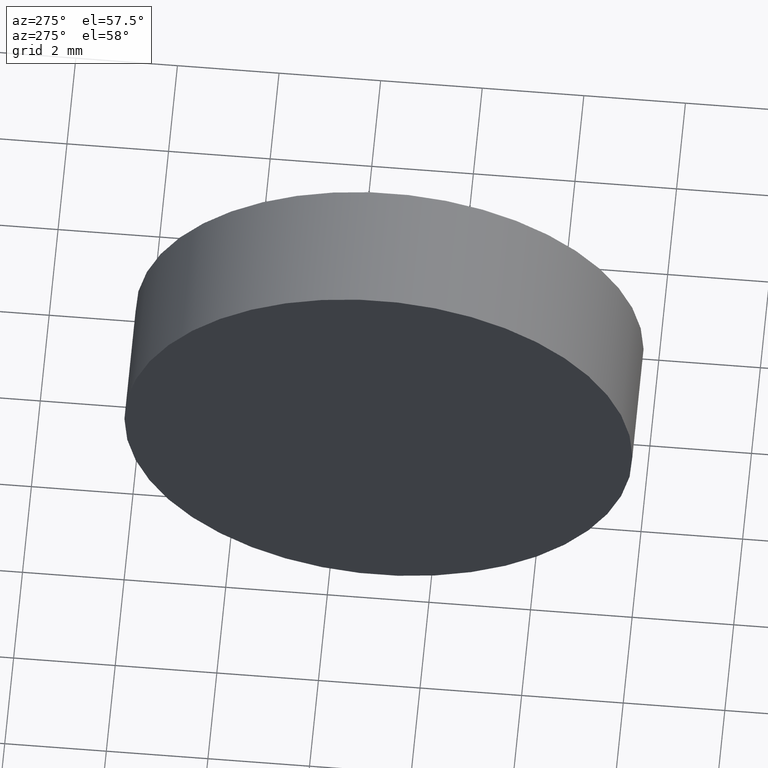
[diagram: clean part render]
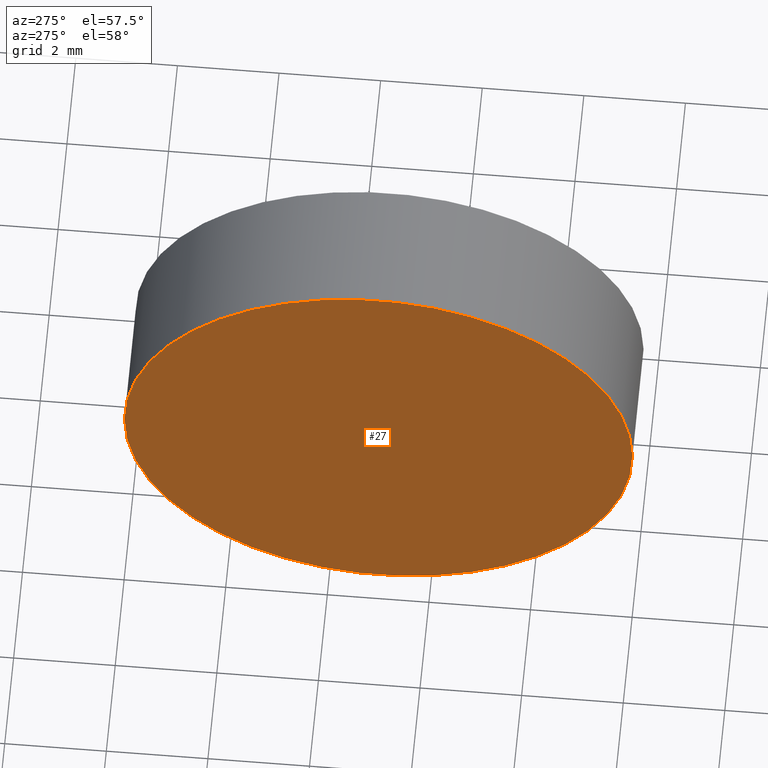
[diagram: same view with one face highlighted and labeled with its STEP entity id]
A machine part, auxiliary view. The second image highlights one B-rep face of the part: STEP entity #27.
In plain terms, the highlighted planar face has unit normal (1, -0, 0).
Its self-contained STEP definition (entity closure, byte-faithful):
#4 = DIRECTION ( 'NONE',  ( 0.0000000000000000000, -1.000000000000000000, 0.0000000000000000000 ) ) ;
#5 = PLANE ( 'NONE',  #114 ) ;
#13 = CIRCLE ( 'NONE', #61, 5.000000000000000900 ) ;
#18 = DIRECTION ( 'NONE',  ( 1.000000000000000000, -3.159171411554934600E-016, 0.0000000000000000000 ) ) ;
#24 = DIRECTION ( 'NONE',  ( -1.000000000000000000, 3.159171411554934600E-016, -0.0000000000000000000 ) ) ;
#27 = ADVANCED_FACE ( 'NONE', ( #83 ), #5, .F. ) ;
#29 = DIRECTION ( 'NONE',  ( 3.159171411554934600E-016, 1.000000000000000000, 0.0000000000000000000 ) ) ;
#32 = CIRCLE ( 'NONE', #145, 5.000000000000000900 ) ;
#33 = CARTESIAN_POINT ( 'NONE',  ( 22.42423205362066000, 8.031126091403040200, 0.0000000000000000000 ) ) ;
#37 = ORIENTED_EDGE ( 'NONE', *, *, #106, .T. ) ;
#54 = DIRECTION ( 'NONE',  ( -1.000000000000000000, 3.159171411554934600E-016, -0.0000000000000000000 ) ) ;
#61 = AXIS2_PLACEMENT_3D ( 'NONE', #90, #54, #4 ) ;
#76 = CARTESIAN_POINT ( 'NONE',  ( 22.42423205362066000, 13.03112609140304200, 0.0000000000000000000 ) ) ;
#79 = CARTESIAN_POINT ( 'NONE',  ( 22.42423205362066000, 18.03112609140304200, 6.123233995736768300E-016 ) ) ;
#83 = FACE_OUTER_BOUND ( 'NONE', #109, .T. ) ;
#85 = VERTEX_POINT ( 'NONE', #33 ) ;
#87 = CARTESIAN_POINT ( 'NONE',  ( 22.42423205362066000, 13.03112609140304200, 0.0000000000000000000 ) ) ;
#90 = CARTESIAN_POINT ( 'NONE',  ( 22.42423205362066000, 13.03112609140304200, 0.0000000000000000000 ) ) ;
#101 = DIRECTION ( 'NONE',  ( 0.0000000000000000000, -1.000000000000000000, 0.0000000000000000000 ) ) ;
#106 = EDGE_CURVE ( 'NONE', #85, #112, #13, .T. ) ;
#109 = EDGE_LOOP ( 'NONE', ( #37, #123 ) ) ;
#112 = VERTEX_POINT ( 'NONE', #79 ) ;
#114 = AXIS2_PLACEMENT_3D ( 'NONE', #87, #18, #29 ) ;
#123 = ORIENTED_EDGE ( 'NONE', *, *, #149, .T. ) ;
#145 = AXIS2_PLACEMENT_3D ( 'NONE', #76, #24, #101 ) ;
#149 = EDGE_CURVE ( 'NONE', #112, #85, #32, .T. ) ;